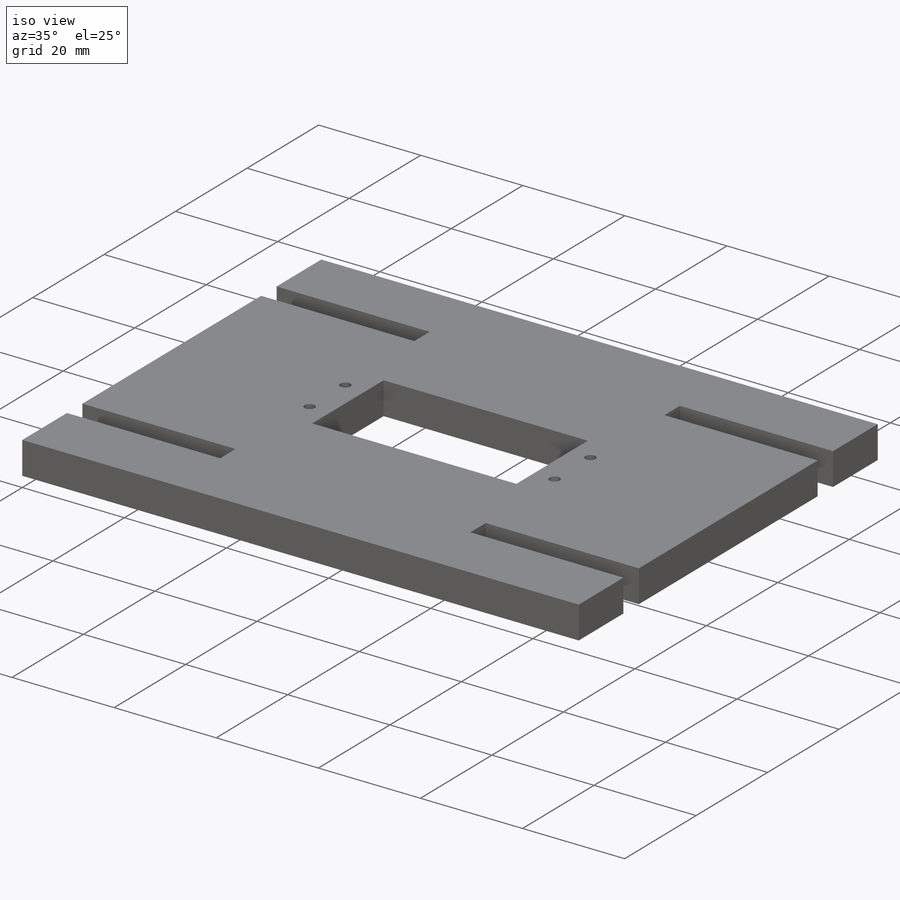
[diagram: iso view]
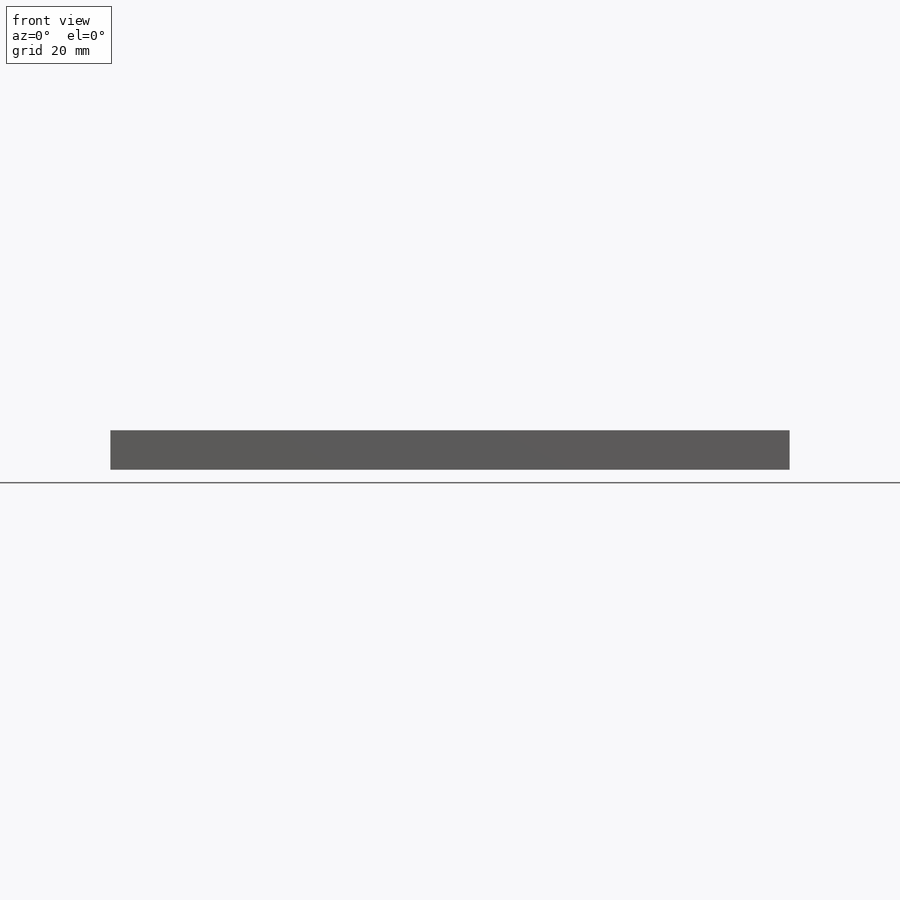
[diagram: front view]
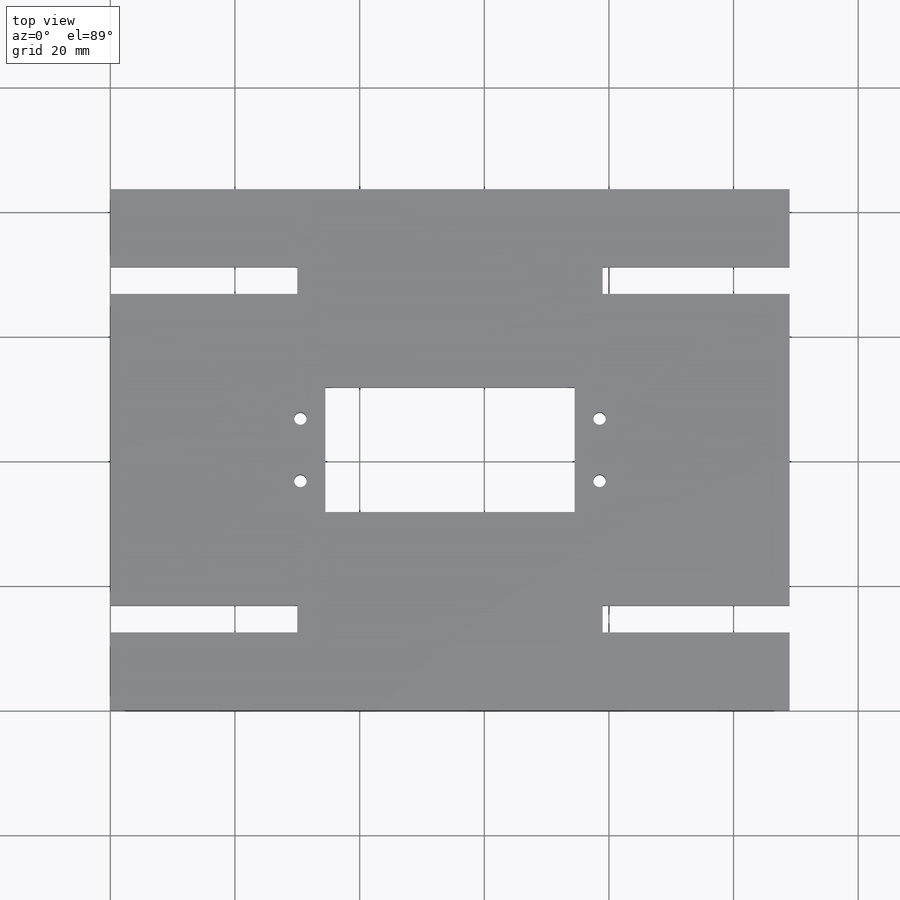
[diagram: top view]
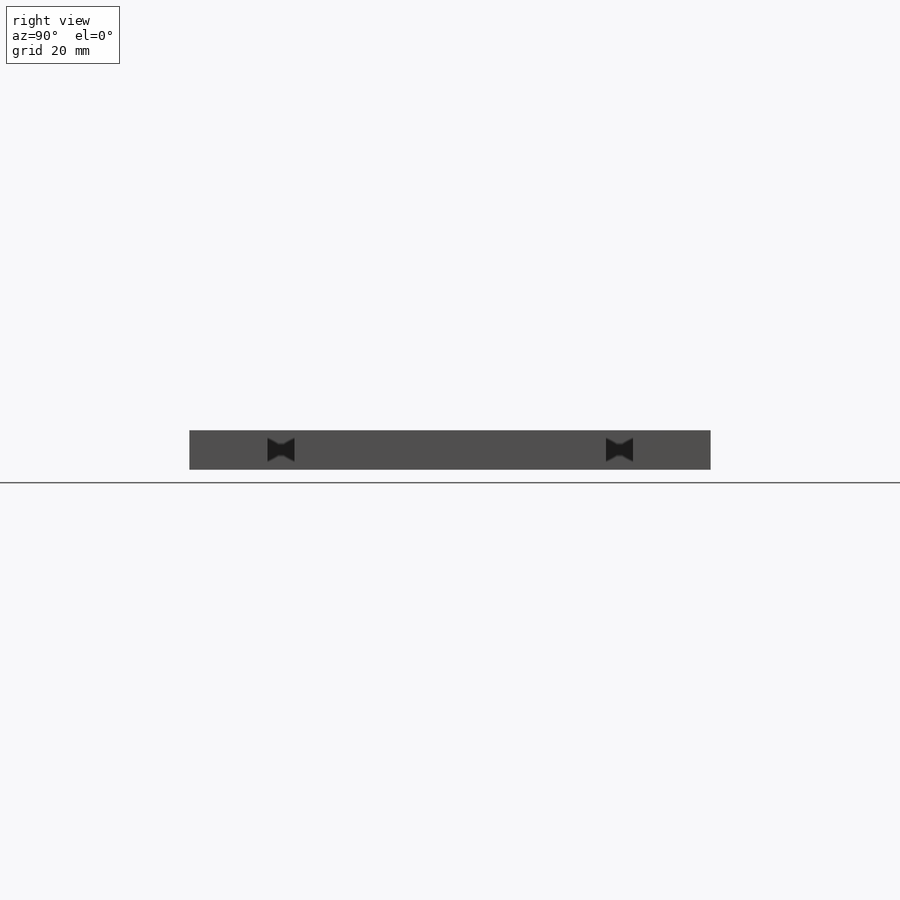
[diagram: right view]
SOLIDWORKS PART (.sldprt)
format: sldprt  version: not decoded by parser v0  size: 431,104 bytes
history: native  units: mm
features: sketch x4, thread x4, material x1, extrude x1, cut_extrude x1, hole x1 (+11 scaffold rows collapsed)
feature tree (23):
  scaffold x11  (default folders/planes/origin — collapsed)
  material  "Balsa"
  sketch  "Sketch1"  dims[c1.D1=80.0mm c1.D2=109.0mm c1.D3=4.318mm c1.D4=30.0mm c1.D5=50.0mm c2.D1=12.5mm]
  extrude  "main shape"  Depth=6.35mm
  sketch  "Sketch2"  dims[D1=40.0mm D2=20.0mm D3=48.0mm D4=20.0mm D5=10.0mm D6=5.0mm D7=10.0mm D8=5.0mm]
  cut_extrude  "cut for servo + mounting hole locations"  [1 undecoded]
  hole  "#3-48 Tapped Hole1"  [1 undecoded]
  sketch  "Sketch4"
  thread  "Hole Thread5"  Diameter=5.03mm  [1 undecoded]
  thread  "Hole Thread6"  Diameter=5.03mm  [1 undecoded]
  thread  "Hole Thread7"  Diameter=5.03mm  [1 undecoded]
  thread  "Hole Thread8"  Diameter=5.03mm  [1 undecoded]
  sketch  "Sketch3"  dims[hole-wizard template sketch: 47 standard entries collapsed; hole parameters kept: c15.Tap Drill Depth=7.67mm c15.D3=~14.816244mm c15.Drill Angle=118.0deg]
decode coverage: 8 of 11 modeling features carry decoded parameters
note: ~ marks probable driven/reference dimensions
note: 6 parameter values undecoded
note: suppression state not decoded; provenance and decode notes live in map.json
